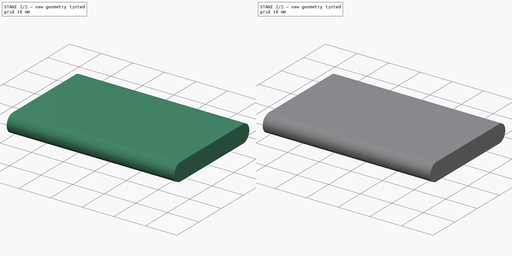
[diagram: build sequence overview — one tinted view per stage of 2, left to right]
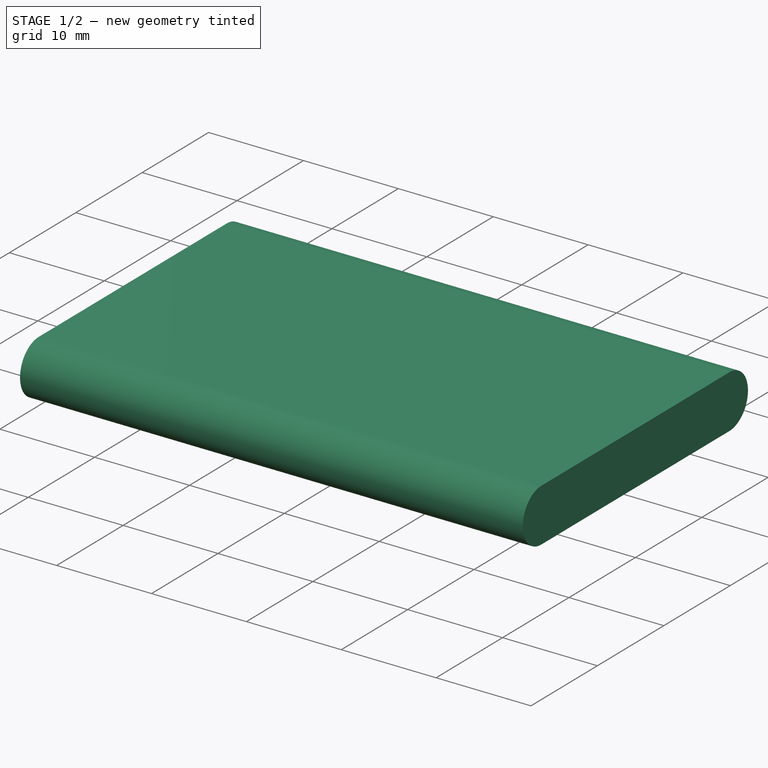
[diagram: stage 1 of 2 — iso view after this stage's code; geometry added in this stage tinted green]
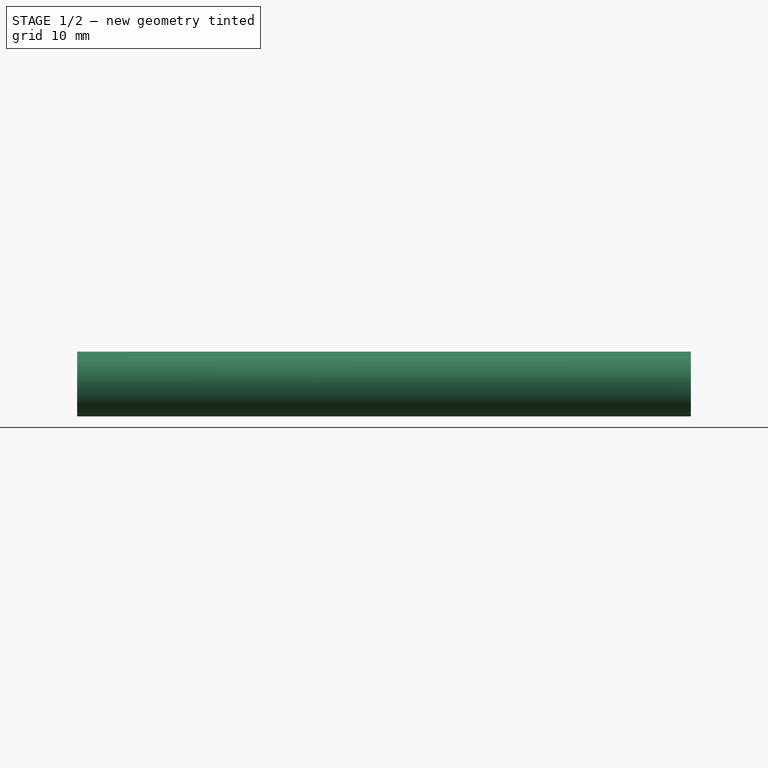
[diagram: stage 1 of 2 — front view after this stage's code; geometry added in this stage tinted green]
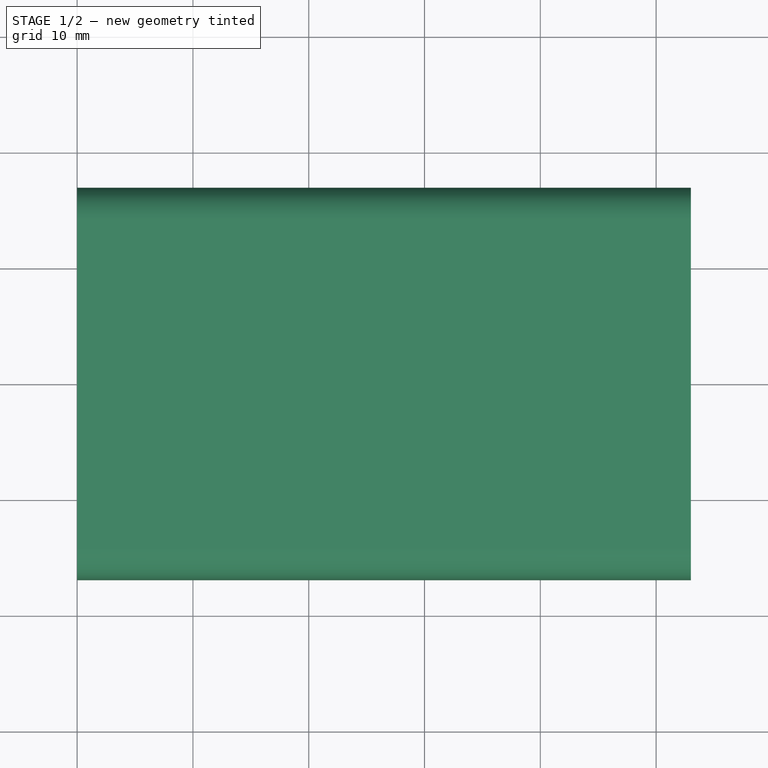
[diagram: stage 1 of 2 — top view after this stage's code; geometry added in this stage tinted green]
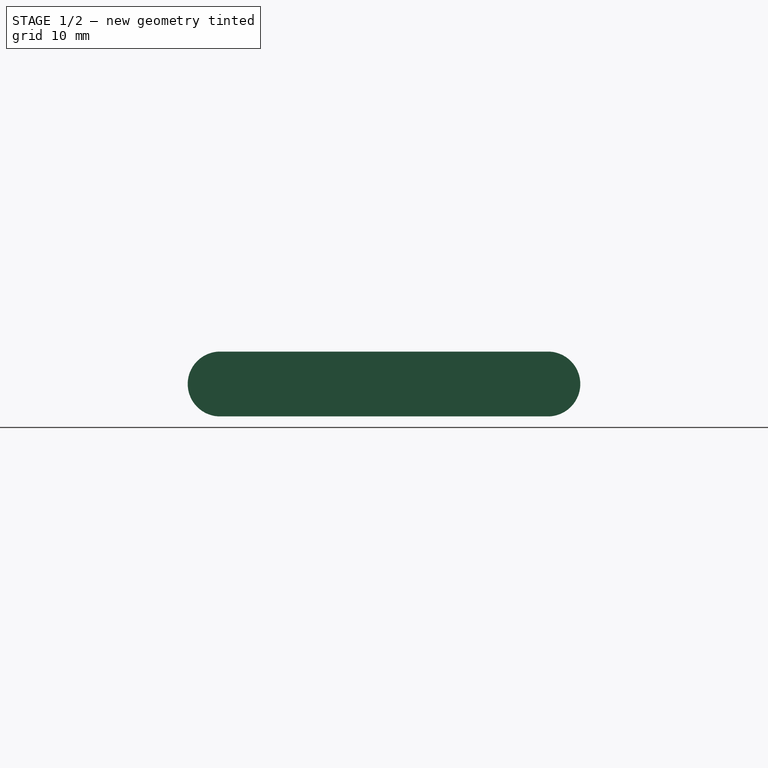
[diagram: stage 1 of 2 — right view after this stage's code; geometry added in this stage tinted green]
FCSTD DOCUMENT  (FreeCAD 0.21R33668 +7 (Git))
Label: BL-5C
License: All rights reserved
LicenseURL: https://en.wikipedia.org/wiki/All_rights_reserved
objects: Sketcher::SketchObject×2, PartDesign::Pad×1, PartDesign::Plane×1, PartDesign::Pocket×1, PartDesign::Body×1
note: 8 computed .brp shape members not serialized (recipe doc carries the construction recipe); baked Part::Feature solids carry a one-line shape summary decoded from their .brp

FEATURE [Sketcher::SketchObject] Sketch
  FullyConstrained = true
  MapMode = 5
  Placement = pos=(0,0,0) rot=(0.57735,0.57735,0.57735;2.0944rad)
  Support = -> [YZ_Plane]
  sketch-geometry (6):
    g0: ArcOfCircle CenterX=-14.15 CenterY=0 CenterZ=0 NormalX=0 NormalY=0 NormalZ=1 AngleXU=0 Radius=2.8 StartAngle=1.5708 EndAngle=4.71239
    g1: ArcOfCircle CenterX=14.15 CenterY=0 CenterZ=0 NormalX=0 NormalY=0 NormalZ=1 AngleXU=0 Radius=2.8 StartAngle=4.71239 EndAngle=7.85398
    g2: LineSegment StartX=-14.15 StartY=2.8 StartZ=0 EndX=14.15 EndY=2.8 EndZ=0
    g3: LineSegment StartX=-14.15 StartY=-2.8 StartZ=0 EndX=14.15 EndY=-2.8 EndZ=0
    g4: GeomPoint X=16.95 Y=0 Z=0
    g5: GeomPoint X=-16.95 Y=0 Z=0
  constraints (13):
    c: PointOnObject(g0,g-1)
    c: Horizontal(g2)
    c: Tangent(g2,g0) = 1.5708
    c: Tangent(g3,g0) = -1.5708
    c: Tangent(g3,g1) = -1.5708
    c: Tangent(g2,g1) = 1.5708
    c: PointOnObject(g4,g1)
    c: PointOnObject(g4,g-1)
    c: DistanceY(g1,g1) = 5.6
    c: Symmetric(g0,g1,g-1)
    c: PointOnObject(g5,g0)
    c: PointOnObject(g5,g-1)
    c: DistanceX(g5,g4) = 33.9
FEATURE [PartDesign::Pad] Pad
  Direction = (1,-2e-16,3e-16)
  Length = 53
  Length2 = 10
  Placement = pos=(0,0,0) rot=(0.57735,0.57735,0.57735;2.0944rad)
  Profile = -> Sketch
  ReferenceAxis = -> Sketch [N_Axis]
  Type = 0
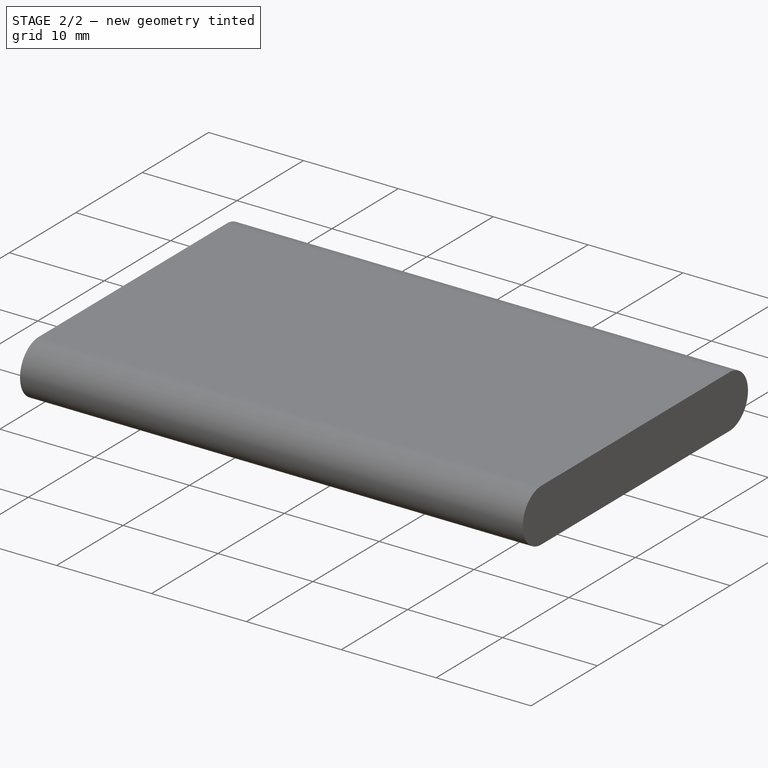
[diagram: stage 2 of 2 — iso view after this stage's code; geometry added in this stage tinted green]
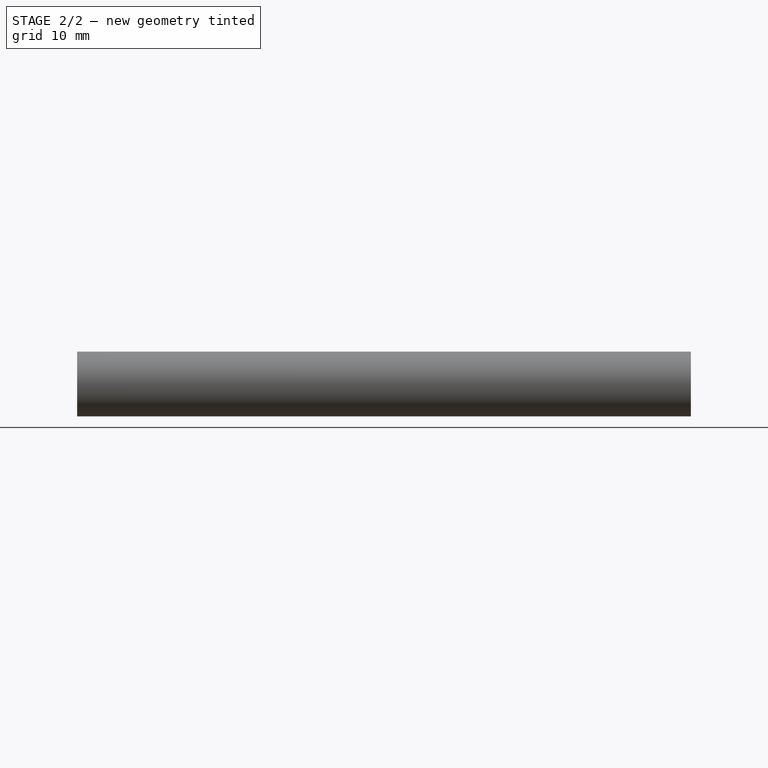
[diagram: stage 2 of 2 — front view after this stage's code; geometry added in this stage tinted green]
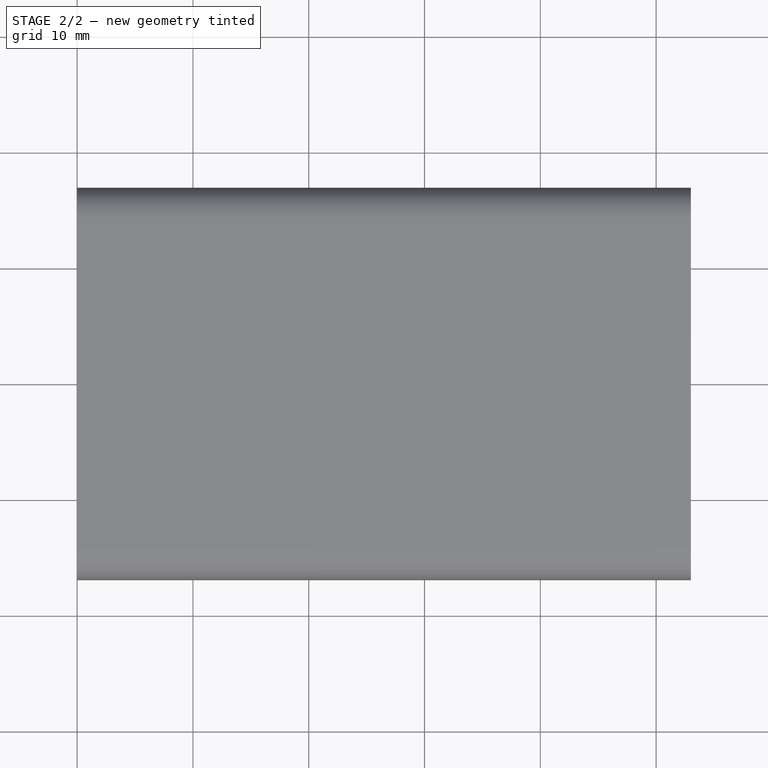
[diagram: stage 2 of 2 — top view after this stage's code; geometry added in this stage tinted green]
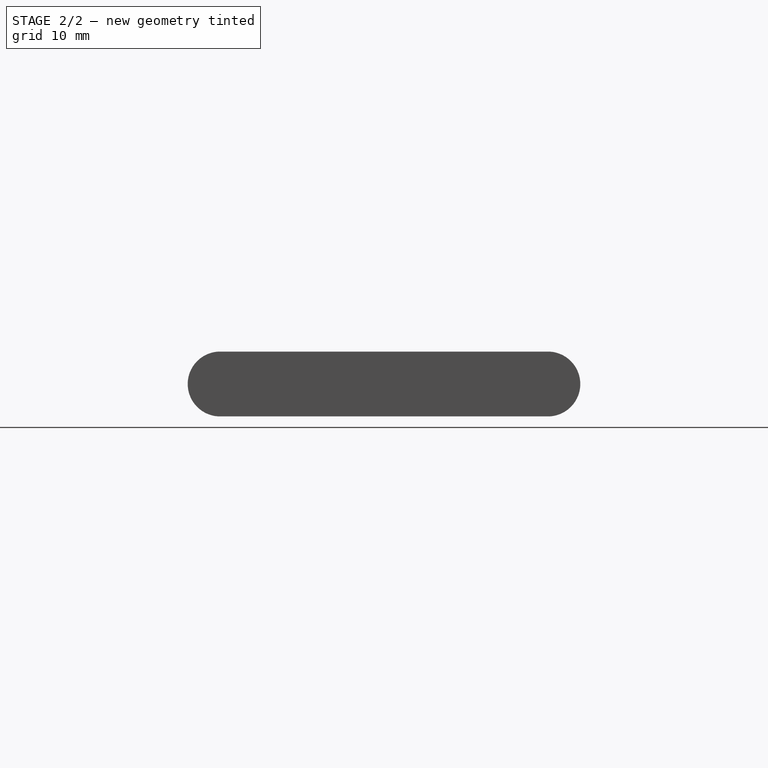
[diagram: stage 2 of 2 — right view after this stage's code; geometry added in this stage tinted green]
FEATURE [PartDesign::Plane] DatumPlane
  Length = 60
  MapMode = 5
  Placement = pos=(0,0,0) rot=(0.57735,0.57735,-0.57735;4.18879rad)
  ResizeMode = 0
  Support = -> [Pad]
  Width = 60
FEATURE [Sketcher::SketchObject] Sketch001
  ExternalGeometry = -> [Pad]
  FullyConstrained = true
  MapMode = 5
  Placement = pos=(0,0,0) rot=(0.57735,0.57735,-0.57735;4.18879rad)
  Support = -> [DatumPlane]
  sketch-geometry (16):
    g0: LineSegment StartX=11.95 StartY=2.3 StartZ=0 EndX=13.95 EndY=2.3 EndZ=0
    g1: LineSegment StartX=13.95 StartY=2.3 StartZ=0 EndX=13.95 EndY=-2.3 EndZ=0
    g2: LineSegment StartX=13.95 StartY=-2.3 StartZ=0 EndX=11.95 EndY=-2.3 EndZ=0
    g3: LineSegment StartX=11.95 StartY=-2.3 StartZ=0 EndX=11.95 EndY=2.3 EndZ=0
    g4: LineSegment StartX=8.75 StartY=2.3 StartZ=0 EndX=10.75 EndY=2.3 EndZ=0
    g5: LineSegment StartX=10.75 StartY=2.3 StartZ=0 EndX=10.75 EndY=-2.3 EndZ=0
    g6: LineSegment StartX=10.75 StartY=-2.3 StartZ=0 EndX=8.75 EndY=-2.3 EndZ=0
    g7: LineSegment StartX=8.75 StartY=-2.3 StartZ=0 EndX=8.75 EndY=2.3 EndZ=0
    g8: LineSegment StartX=5.55 StartY=2.3 StartZ=0 EndX=7.55 EndY=2.3 EndZ=0
    g9: LineSegment StartX=7.55 StartY=2.3 StartZ=0 EndX=7.55 EndY=-2.3 EndZ=0
    g10: LineSegment StartX=7.55 StartY=-2.3 StartZ=0 EndX=5.55 EndY=-2.3 EndZ=0
    g11: LineSegment StartX=5.55 StartY=-2.3 StartZ=0 EndX=5.55 EndY=2.3 EndZ=0
    g12: LineSegment StartX=7.55 StartY=2.3 StartZ=0 EndX=8.75 EndY=2.3 EndZ=0
    g13: LineSegment StartX=10.75 StartY=2.3 StartZ=0 EndX=11.95 EndY=2.3 EndZ=0
    g14: GeomPoint X=-16.95 Y=0 Z=0
    g15: GeomPoint X=16.95 Y=0 Z=0
  constraints (43):
    c: Coincident(g0,g1)
    c: Coincident(g1,g2)
    c: Coincident(g2,g3)
    c: Coincident(g3,g0)
    c: Horizontal(g0)
    c: Horizontal(g2)
    c: Vertical(g3)
    c: Coincident(g4,g5)
    c: Coincident(g5,g6)
    c: Coincident(g6,g7)
    c: Coincident(g7,g4)
    c: Horizontal(g4)
    c: Horizontal(g6)
    c: Vertical(g5)
    c: Vertical(g7)
    c: Coincident(g8,g9)
    c: Coincident(g9,g10)
    c: Coincident(g10,g11)
    c: Coincident(g11,g8)
    c: Horizontal(g8)
    c: Horizontal(g10)
    c: Vertical(g9)
    c: Vertical(g11)
    c: PointOnObject(g4,g8)
    c: PointOnObject(g0,g8)
    c: PointOnObject(g6,g10)
    c: PointOnObject(g2,g10)
    c: Equal(g8,g4)
    c: Coincident(g12,g8)
    c: Coincident(g12,g4)
    c: Coincident(g13,g4)
    c: Coincident(g13,g0)
    c: Equal(g13,g12)
    c: PointOnObject(g14,g-3)
    c: PointOnObject(g14,g-1)
    c: DistanceX(g14,g10) = 22.5
    c: PointOnObject(g15,g-1)
    c: PointOnObject(g15,g-4)
    c: DistanceX(g1,g15) = 3
    c: DistanceX(g6,g6) = 2
    c: Equal(g2,g6)
    c: Symmetric(g0,g1,g-1)
    c: DistanceY(g1,g1) = 4.6
FEATURE [PartDesign::Pocket] Pocket
  BaseFeature = -> Pad
  Direction = (1,-4e-16,4e-16)
  Length = 0.6
  Length2 = 5
  Placement = pos=(0,0,0) rot=(0.57735,0.57735,0.57735;2.0944rad)
  Profile = -> Sketch001
  ReferenceAxis = -> Sketch001 [N_Axis]
  Type = 0
FEATURE [PartDesign::Body] Body  label="BL-5C"
  Group = -> [Sketch,Pad,DatumPlane,Sketch001,Pocket]
  Origin = -> Origin
  Tip = -> Pocket
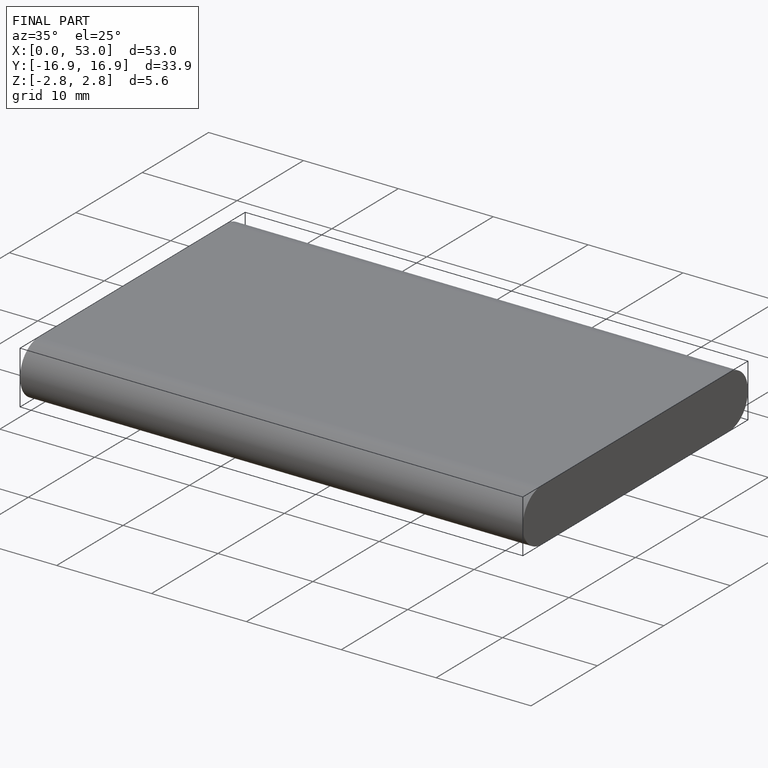
[diagram: finished part — iso view with bounding-box wireframe]
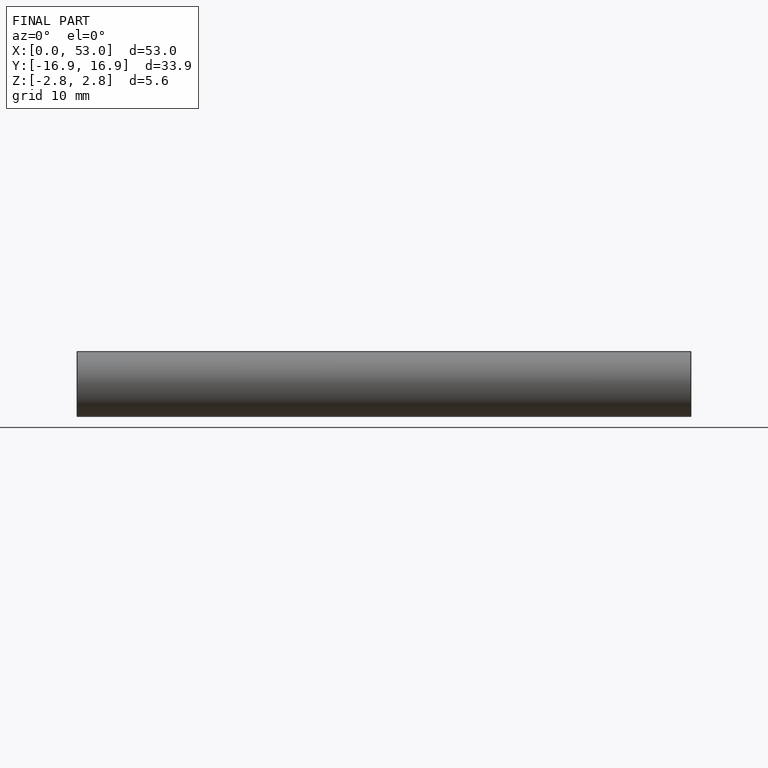
[diagram: finished part — front view with bounding-box wireframe]
